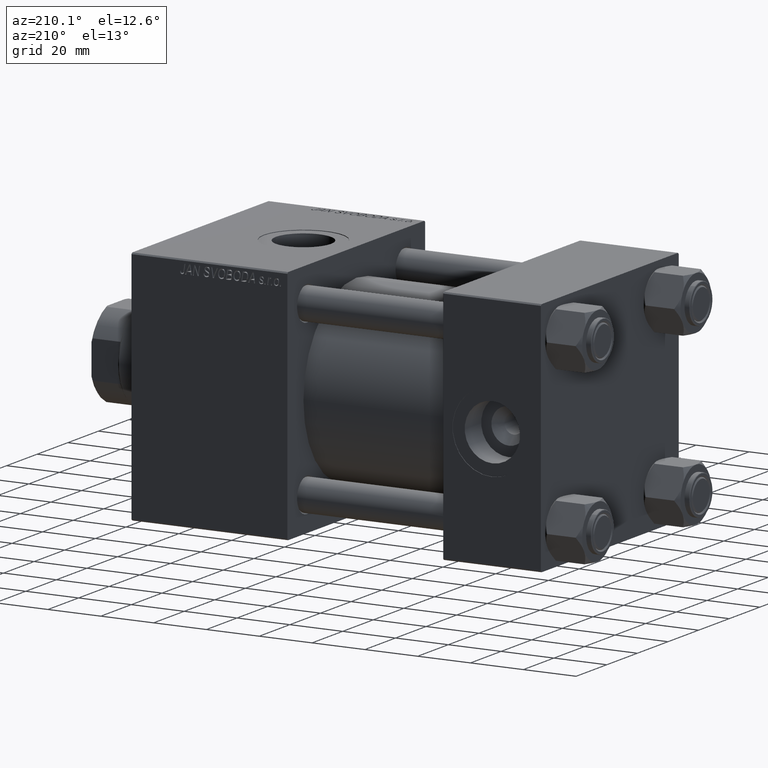
[diagram: clean part render]
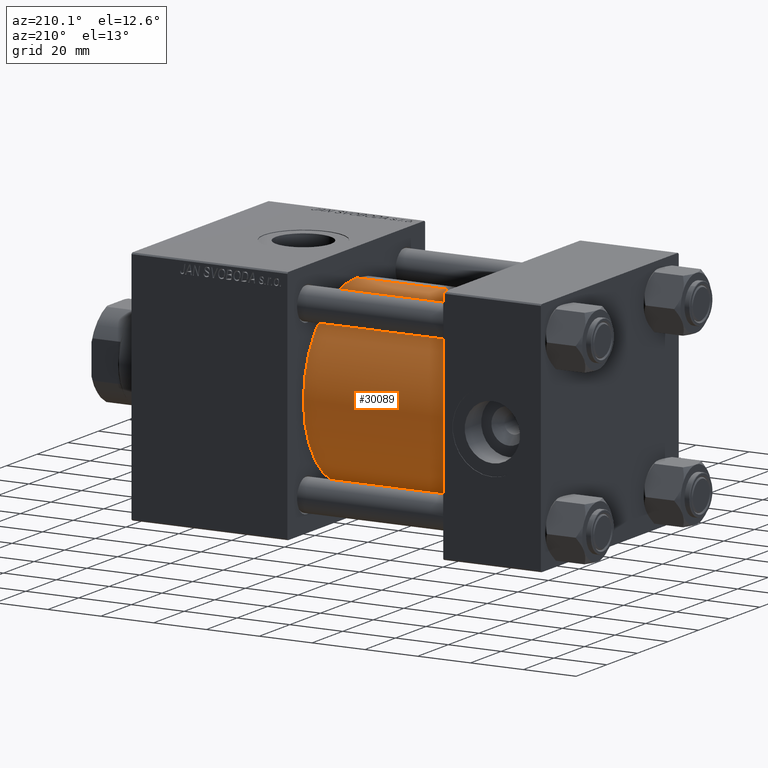
[diagram: same view with one face highlighted and labeled with its STEP entity id]
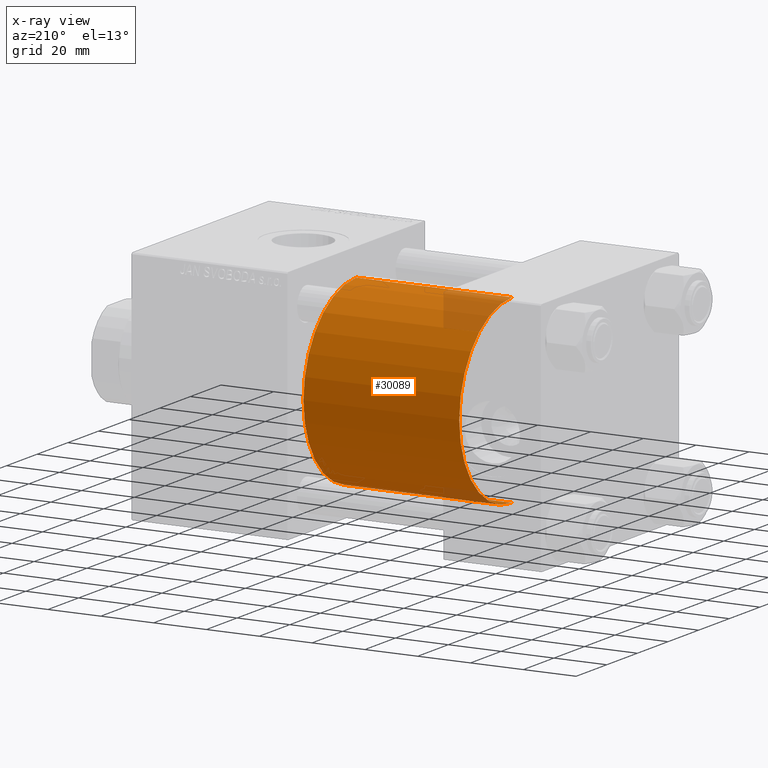
[diagram: x-ray of the same camera — body ghosted, the highlighted face saturated]
A machine part, auxiliary view. The second image highlights one B-rep face of the part: STEP entity #30089.
The next image is the same camera in x-ray: the body ghosted, the highlighted face saturated — about 8% of this face is hidden behind the body in this view.
In plain terms, the highlighted cylindrical surface (partial cylindrical patch) has radius 34.5 mm, axis along (-1, -0, -0).
Its self-contained STEP definition (entity closure, byte-faithful):
#606 = CARTESIAN_POINT ( 'NONE',  ( 96.00000000000000000, -2.602085213965210642E-15, 34.50000000000000000 ) ) ;
#817 = CARTESIAN_POINT ( 'NONE',  ( 96.00000000000000000, -2.602085213965210642E-15, 0.000000000000000000 ) ) ;
#2913 = CIRCLE ( 'NONE', #17477, 34.50000000000000000 ) ;
#3821 = EDGE_CURVE ( 'NONE', #42032, #43375, #5334, .T. ) ;
#4281 = ORIENTED_EDGE ( 'NONE', *, *, #44161, .T. ) ;
#5334 = LINE ( 'NONE', #20800, #13037 ) ;
#5769 = EDGE_LOOP ( 'NONE', ( #25913, #49321, #4281, #29912 ) ) ;
#7515 = CYLINDRICAL_SURFACE ( 'NONE', #13074, 34.50000000000000000 ) ;
#8910 = CARTESIAN_POINT ( 'NONE',  ( 96.00000000000000000, 1.622946243093158675E-15, -34.50000000000000000 ) ) ;
#11922 = CIRCLE ( 'NONE', #32997, 34.50000000000000000 ) ;
#13037 = VECTOR ( 'NONE', #26047, 1000.000000000000000 ) ;
#13074 = AXIS2_PLACEMENT_3D ( 'NONE', #27297, #19672, #42792 ) ;
#13294 = VECTOR ( 'NONE', #38195, 1000.000000000000000 ) ;
#13668 = CARTESIAN_POINT ( 'NONE',  ( 96.00000000000000000, 1.622946243093158675E-15, -34.50000000000000000 ) ) ;
#14673 = VERTEX_POINT ( 'NONE', #13668 ) ;
#17477 = AXIS2_PLACEMENT_3D ( 'NONE', #49717, #26592, #18470 ) ;
#18470 = DIRECTION ( 'NONE',  ( 0.000000000000000000, 0.000000000000000000, 1.000000000000000000 ) ) ;
#19672 = DIRECTION ( 'NONE',  ( -1.000000000000000000, -0.000000000000000000, -0.000000000000000000 ) ) ;
#20800 = CARTESIAN_POINT ( 'NONE',  ( 96.00000000000000000, -2.602085213965210642E-15, 34.50000000000000000 ) ) ;
#22895 = EDGE_CURVE ( 'NONE', #14673, #42032, #11922, .T. ) ;
#25913 = ORIENTED_EDGE ( 'NONE', *, *, #22895, .F. ) ;
#26047 = DIRECTION ( 'NONE',  ( -1.000000000000000000, -0.000000000000000000, -0.000000000000000000 ) ) ;
#26592 = DIRECTION ( 'NONE',  ( 1.000000000000000000, -0.000000000000000000, 0.000000000000000000 ) ) ;
#27297 = CARTESIAN_POINT ( 'NONE',  ( 96.00000000000000000, -2.602085213965210642E-15, 0.000000000000000000 ) ) ;
#28361 = VERTEX_POINT ( 'NONE', #41892 ) ;
#29912 = ORIENTED_EDGE ( 'NONE', *, *, #3821, .F. ) ;
#30089 = ADVANCED_FACE ( 'NONE', ( #38979 ), #7515, .T. ) ;
#32003 = LINE ( 'NONE', #8910, #13294 ) ;
#32140 = CARTESIAN_POINT ( 'NONE',  ( 37.00000000000000000, -2.602085213965210642E-15, 34.50000000000000000 ) ) ;
#32997 = AXIS2_PLACEMENT_3D ( 'NONE', #817, #34824, #50082 ) ;
#34824 = DIRECTION ( 'NONE',  ( 1.000000000000000000, 0.000000000000000000, 0.000000000000000000 ) ) ;
#36081 = EDGE_CURVE ( 'NONE', #14673, #28361, #32003, .T. ) ;
#38195 = DIRECTION ( 'NONE',  ( -1.000000000000000000, -0.000000000000000000, -0.000000000000000000 ) ) ;
#38979 = FACE_OUTER_BOUND ( 'NONE', #5769, .T. ) ;
#41892 = CARTESIAN_POINT ( 'NONE',  ( 37.00000000000000000, 1.622946243093158675E-15, -34.50000000000000000 ) ) ;
#42032 = VERTEX_POINT ( 'NONE', #606 ) ;
#42792 = DIRECTION ( 'NONE',  ( 0.000000000000000000, 0.000000000000000000, 1.000000000000000000 ) ) ;
#43375 = VERTEX_POINT ( 'NONE', #32140 ) ;
#44161 = EDGE_CURVE ( 'NONE', #28361, #43375, #2913, .T. ) ;
#49321 = ORIENTED_EDGE ( 'NONE', *, *, #36081, .T. ) ;
#49717 = CARTESIAN_POINT ( 'NONE',  ( 37.00000000000000000, -2.602085213965210642E-15, 0.000000000000000000 ) ) ;
#50082 = DIRECTION ( 'NONE',  ( 0.000000000000000000, 0.000000000000000000, -1.000000000000000000 ) ) ;